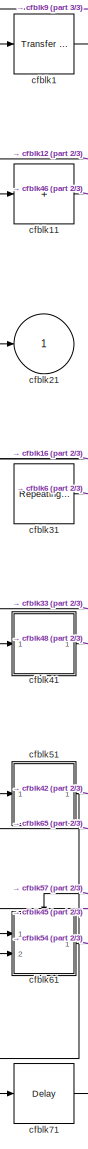
[diagram: root canvas - part 1/3, left side, full height]
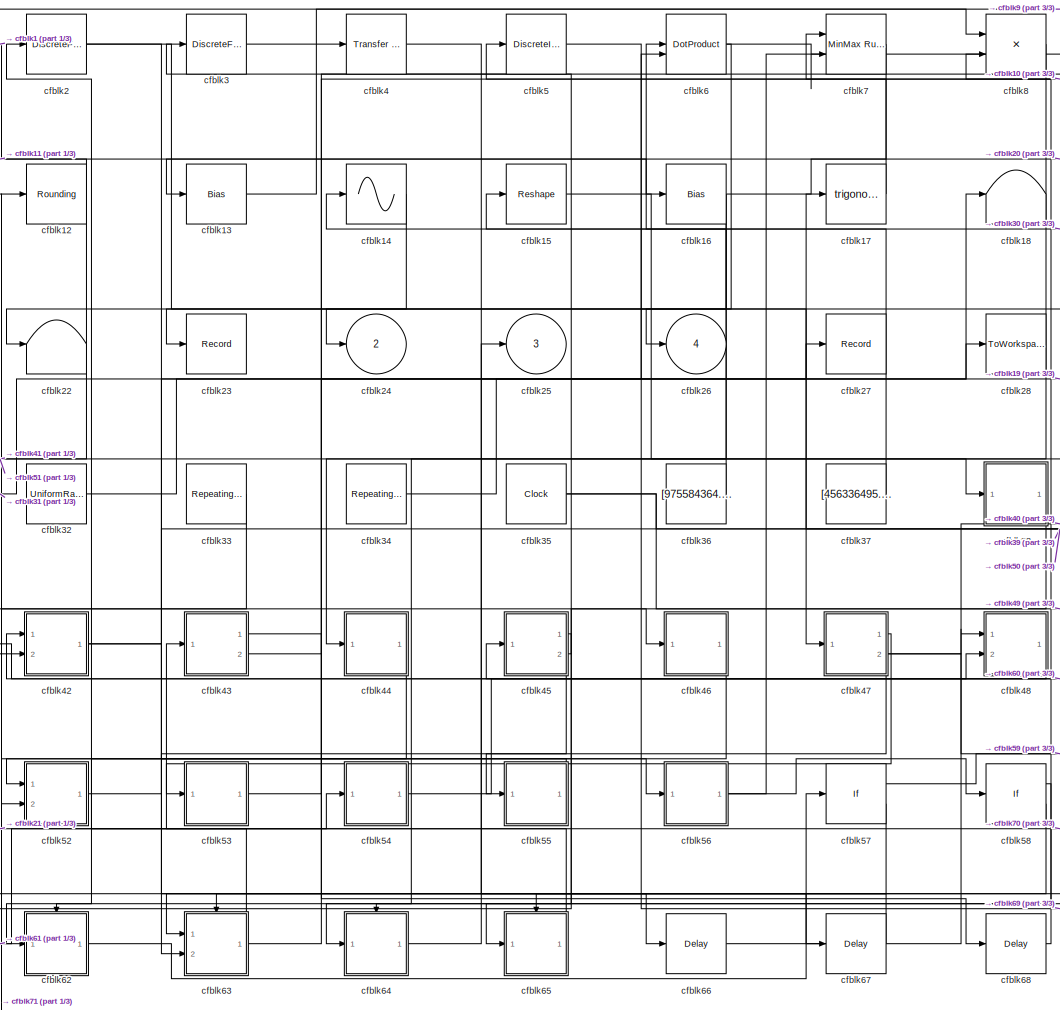
[diagram: root canvas - part 2/3, center side, full height]
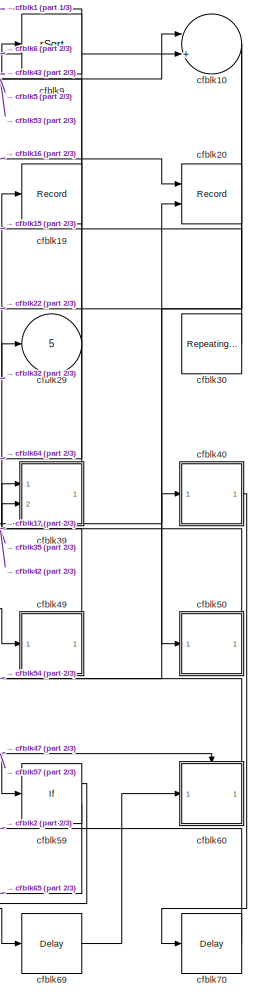
[diagram: root canvas - part 3/3, right side, full height]
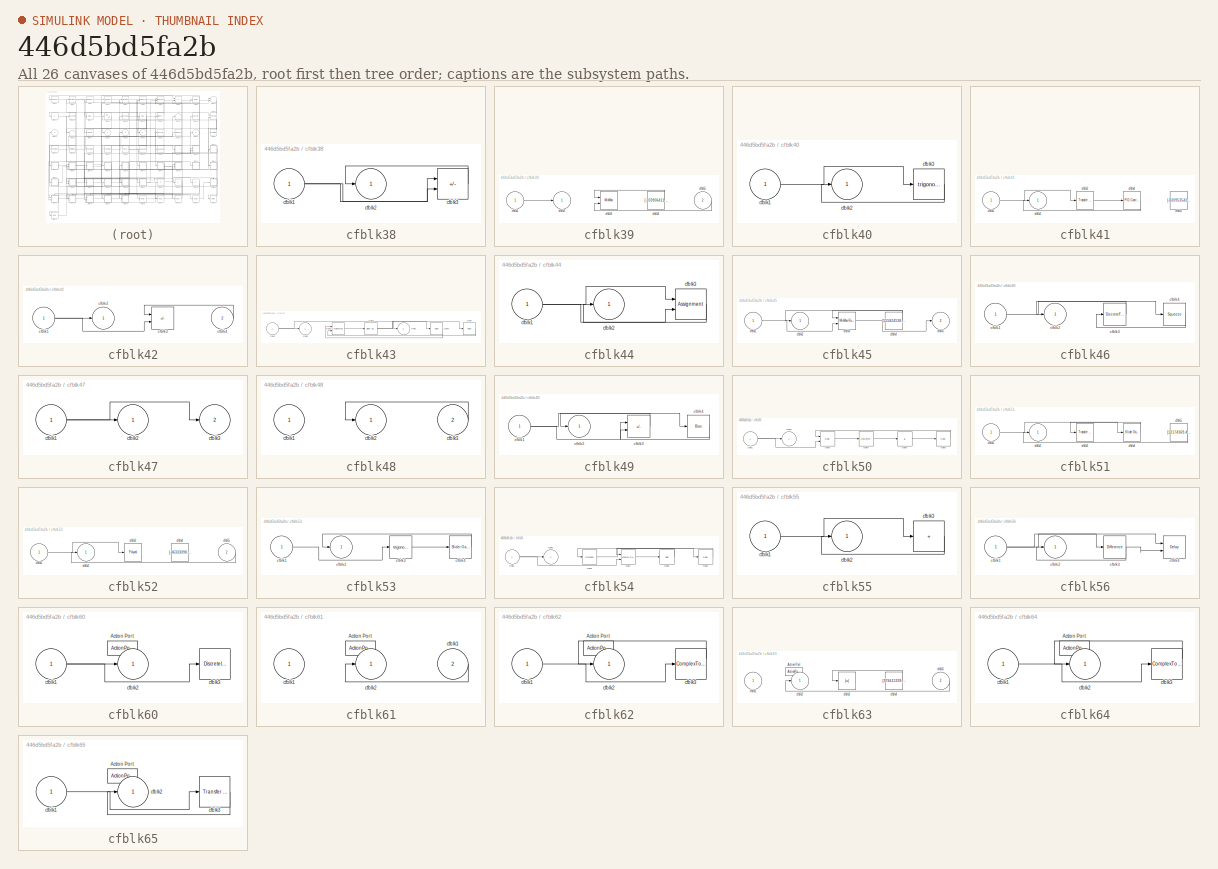
[diagram: thumbnail index - all 26 canvases of the model, root first then tree order]
MODEL slx_446d5bd5fa2b
KIND model
CONFIG AbsTol = auto
CONFIG EnableMultiTasking = off
CONFIG FixedStep = auto
CONFIG MaxStep = auto
CONFIG MinStep = auto
CONFIG RelTol = 1e-3
CONFIG SampleTimeConstraint = Unconstrained
CONFIG SolverName = VariableStepAuto
CONFIG StartTime = 0.0
CONFIG StopTime = 10.0
BLOCK [Reference] cfblk1  REF=simulink/Discrete/Transfer Fcn
Real Zero
  Ports = [1, 1]
  SourceBlock = simulink/Discrete/Transfer Fcn\nReal Zero
  SourceProductBaseCode = SL
  SourceType = Transfer Fcn Real Zero
BLOCK [Sum] cfblk10
  Inputs = |++
  Ports = [2, 1]
BLOCK [Sum] cfblk11
  IconShape = rectangular
  Inputs = +
  Ports = [1, 1]
BLOCK [Rounding] cfblk12
BLOCK [Bias] cfblk13
  Bias = [-683070541.144107]
  SaturateOnIntegerOverflow = off
BLOCK [Sin] cfblk14
  Ports = [1, 1]
  SampleTime = 0
  TimeSource = Use external signal
BLOCK [Reshape] cfblk15
  Ports = [1, 1]
BLOCK [Bias] cfblk16
  Bias = [-522802769.991097]
  SaturateOnIntegerOverflow = off
BLOCK [Trigonometry] cfblk17
  Ports = [1, 1]
BLOCK [Terminator] cfblk18
BLOCK [Record] cfblk19
  FileSettingsInternal = {"entries":[{"content":{"excelSettings":{"content":{},"type":"Streamout.ExcelSettings"}},"type":"Streamout.FileSettingStorage","uuid":"2ab1578b-86c7-4f25-b23b-f8d6f15a5c50"}],"packageUris":["http://schema.mathworks.com/mf0/streamout_blocks/R2020a"],"version":"1.0"}
  Ports = [1]
  SignalsInternal = {"entries":[{"content":{"signals":[{"content":{"blockPath":["sampleModel257/cfblk19"],"channel":[],"dimensions":[1],"domain":"sampleModel257/cfblk19","lineColor":"#fe330a","plots":[1],"port":1,"sid":[""],"signalID":10619,"signalName":"cfblk32"},"type":"RecordBlkView.Signal","uuid":"c116c59d-c383-4a62-b9dd-bef188b6a92c"}]},"type":"RecordBlkView.InputSignals","uuid":"59890f28-61aa-4252-838f-816ff403...<+98ch>
  VisualizationBindings = {"sparklinesplugin":{"info":[{"bindingParametersList":[],"subplotID":1}]}}
BLOCK [DiscreteFir] cfblk2
  InputPortMap = u0
  OutputPortMap = o0
  Ports = [1, 1]
  SampleTime = 1
BLOCK [Record] cfblk20
  CompatibilityTag = XY
  FileSettingsInternal = {"entries":[{"content":{"excelSettings":{"content":{},"type":"Streamout.ExcelSettings"}},"type":"Streamout.FileSettingStorage","uuid":"ddf2c5f0-8deb-4ac6-b6ac-07b526f580c7"}],"packageUris":["http://schema.mathworks.com/mf0/streamout_blocks/R2020a"],"version":"1.0"}
  Layout = [1 1]
  Ports = [2]
  SignalsInternal = {"entries":[{"content":{"signals":[{"content":{"blockPath":["sampleModel257/cfblk20"],"channel":[],"dimensions":[1],"domain":"sampleModel257/cfblk20","lineColor":"#a2142f","plots":[1],"port":1,"sid":[""],"signalID":10603,"signalName":"cfblk16"},"type":"RecordBlkView.Signal","uuid":"a0e00e2b-60e6-43d2-9d8d-836ea06b8f3f"},{"content":{"blockPath":["sampleModel257/cfblk20"],"channel":[],"dimensions":[...<+385ch>
  VisualizationBindings = {"xyplotplugin":{"info":[{"series":[{"bindingParametersList":[{"parameter":"X-Axis","signalID":10603,"signalName":"cfblk16"},{"parameter":"Y-Axis","signalID":10607,"signalName":"cfblk54"}],"seriesID":16544}],"subplotID":1}]}}
BLOCK [Outport] cfblk21
BLOCK [Terminator] cfblk22
BLOCK [Record] cfblk23
  FileSettingsInternal = {"entries":[{"content":{"excelSettings":{"content":{},"type":"Streamout.ExcelSettings"}},"type":"Streamout.FileSettingStorage","uuid":"70e21285-8622-4f4c-8864-935dd75f7605"}],"packageUris":["http://schema.mathworks.com/mf0/streamout_blocks/R2020a"],"version":"1.0"}
  Ports = [1]
  SignalsInternal = {"entries":[{"content":{"signals":[{"content":{"blockPath":["sampleModel257/cfblk23"],"channel":[],"dimensions":[1],"domain":"sampleModel257/cfblk23","lineColor":"#ff13a6","plots":[1],"port":1,"sid":[""],"signalID":10615,"signalName":"cfblk14"},"type":"RecordBlkView.Signal","uuid":"89a995ae-1b65-4a70-9c75-f562eec9963f"}]},"type":"RecordBlkView.InputSignals","uuid":"2aba3f60-c205-4dbe-934f-5a1f4002...<+98ch>
  VisualizationBindings = {"sparklinesplugin":{"info":[{"bindingParametersList":[],"subplotID":1}]}}
BLOCK [Outport] cfblk24
  Port = 2
BLOCK [Outport] cfblk25
  Port = 3
BLOCK [Outport] cfblk26
  Port = 4
BLOCK [Record] cfblk27
  FileSettingsInternal = {"entries":[{"content":{"excelSettings":{"content":{},"type":"Streamout.ExcelSettings"}},"type":"Streamout.FileSettingStorage","uuid":"9b9a9fdf-4e8d-4ae3-97b2-e0004514abab"}],"packageUris":["http://schema.mathworks.com/mf0/streamout_blocks/R2020a"],"version":"1.0"}
  Ports = [1]
  SignalsInternal = {"entries":[{"content":{"signals":[{"content":{"blockPath":["sampleModel257/cfblk27"],"channel":[],"dimensions":[1],"domain":"sampleModel257/cfblk27","lineColor":"#64d413","plots":[1],"port":1,"sid":[""],"signalID":10611,"signalName":"cfblk63"},"type":"RecordBlkView.Signal","uuid":"2aed3ace-228a-445a-9f27-d276254a442c"}]},"type":"RecordBlkView.InputSignals","uuid":"1cdac96b-9a88-4913-bf08-c3070154...<+98ch>
  VisualizationBindings = {"sparklinesplugin":{"info":[{"bindingParametersList":[],"subplotID":1}]}}
BLOCK [ToWorkspace] cfblk28
  FixptAsFi = on
  MaxDataPoints = inf
  Ports = [1]
  SampleTime = -1
  SaveFormat = Timeseries
  VariableName = nmvuykq
BLOCK [Outport] cfblk29
  Port = 5
BLOCK [DiscreteFir] cfblk3
  InputPortMap = u0
  OutputPortMap = o0
  Ports = [1, 1]
  SampleTime = 1
BLOCK [Reference] cfblk30  REF=simulink/Sources/Repeating
Sequence
  Ports = [0, 1]
  SourceBlock = simulink/Sources/Repeating\nSequence
  SourceProductBaseCode = SL
  SourceType = Repeating table
BLOCK [Reference] cfblk31  REF=simulink/Sources/Repeating
Sequence
Stair
  Ports = [0, 1]
  SourceBlock = simulink/Sources/Repeating\nSequence\nStair
  SourceProductBaseCode = SL
  SourceType = Repeating Sequence Stair
BLOCK [UniformRandomNumber] cfblk32
  Maximum = [5045896076.837665]
  Minimum = [-9375345232.117300]
  SampleTime = 0.1
  Seed = [26008851.000000]
BLOCK [Reference] cfblk33  REF=simulink/Sources/Repeating
Sequence
Stair
  Ports = [0, 1]
  SourceBlock = simulink/Sources/Repeating\nSequence\nStair
  SourceProductBaseCode = SL
  SourceType = Repeating Sequence Stair
BLOCK [Reference] cfblk34  REF=simulink/Sources/Repeating
Sequence
Interpolated
  Ports = [0, 1]
  SourceBlock = simulink/Sources/Repeating\nSequence\nInterpolated
  SourceProductBaseCode = SL
  SourceType = Repeating Sequence Interpolated
BLOCK [Clock] cfblk35
BLOCK [Constant] cfblk36
  SampleTime = 1
  Value = [975584364.645043]
BLOCK [Constant] cfblk37
  SampleTime = 1
  Value = [456336495.070314]
BLOCK [SubSystem] cfblk38
  Ports = [1, 1]
  RequestExecContextInheritance = off
BLOCK [Inport] cfblk38/cfblk1
BLOCK [Outport] cfblk38/cfblk2
BLOCK [Sum] cfblk38/cfblk3
  IconShape = rectangular
  Inputs = -+
  Ports = [2, 1]
BLOCK [SubSystem] cfblk39
  Ports = [2, 1]
  RequestExecContextInheritance = off
BLOCK [Inport] cfblk39/cfblk1
BLOCK [Outport] cfblk39/cfblk2
BLOCK [MinMax] cfblk39/cfblk3
  Function = max
  Inputs = 2
  Ports = [2, 1]
BLOCK [Constant] cfblk39/cfblk4
  SampleTime = 1
  Value = [-333906411.786085]
BLOCK [Inport] cfblk39/cfblk5
  Port = 2
BLOCK [Reference] cfblk4  REF=simulink/Discrete/Transfer Fcn
Real Zero
  Ports = [1, 1]
  SourceBlock = simulink/Discrete/Transfer Fcn\nReal Zero
  SourceProductBaseCode = SL
  SourceType = Transfer Fcn Real Zero
BLOCK [SubSystem] cfblk40
  Ports = [1, 1]
  RequestExecContextInheritance = off
BLOCK [Inport] cfblk40/cfblk1
BLOCK [Outport] cfblk40/cfblk2
BLOCK [Trigonometry] cfblk40/cfblk3
  Ports = [1, 1]
BLOCK [SubSystem] cfblk41
  Ports = [1, 1]
  RequestExecContextInheritance = off
BLOCK [Inport] cfblk41/cfblk1
BLOCK [Outport] cfblk41/cfblk2
BLOCK [Reference] cfblk41/cfblk3  REF=simulink/Discrete/Transfer Fcn
Lead or Lag
  Ports = [1, 1]
  SourceBlock = simulink/Discrete/Transfer Fcn\nLead or Lag
  SourceProductBaseCode = SL
  SourceType = Lead or Lag Compensator
BLOCK [Reference] cfblk41/cfblk4  REF=slpidlib/PID Controller
  Ports = [1, 1]
  SourceBlock = slpidlib/PID Controller
  SourceProductBaseCode = SL
  SourceType = PID 1dof
BLOCK [Constant] cfblk41/cfblk5
  SampleTime = 1
  Value = [-820953542.054547]
BLOCK [SubSystem] cfblk42
  Ports = [2, 1]
  RequestExecContextInheritance = off
BLOCK [Inport] cfblk42/cfblk1
BLOCK [Outport] cfblk42/cfblk2
BLOCK [Sum] cfblk42/cfblk3
  IconShape = rectangular
  Inputs = --
  Ports = [2, 1]
BLOCK [Inport] cfblk42/cfblk4
  Port = 2
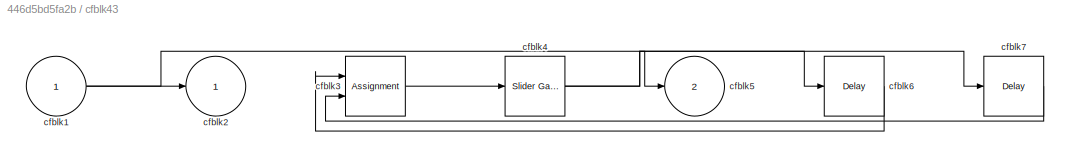
BLOCK [SubSystem] cfblk43
  Ports = [1, 2]
  RequestExecContextInheritance = off
BLOCK [Inport] cfblk43/cfblk1
BLOCK [Outport] cfblk43/cfblk2
BLOCK [Assignment] cfblk43/cfblk3
  DiagnosticForDimensions = Warning
  IndexOptions = Index vector (dialog)
  Indices = 1
  OutputSizes = 1
  Ports = [2, 1]
BLOCK [Reference] cfblk43/cfblk4  REF=simulink/Math
Operations/Slider
Gain
  Ports = [1, 1]
  SourceBlock = simulink/Math\nOperations/Slider\nGain
  SourceProductBaseCode = SL
  SourceType = Slider Gain
BLOCK [Outport] cfblk43/cfblk5
  Port = 2
BLOCK [Delay] cfblk43/cfblk6
  InputPortMap = u0
  Ports = [1, 1]
  SampleTime = 1
BLOCK [Delay] cfblk43/cfblk7
  InputPortMap = u0
  Ports = [1, 1]
  SampleTime = 1
BLOCK [SubSystem] cfblk44
  Ports = [1, 1]
  RequestExecContextInheritance = off
BLOCK [Inport] cfblk44/cfblk1
BLOCK [Outport] cfblk44/cfblk2
BLOCK [Assignment] cfblk44/cfblk3
  DiagnosticForDimensions = Warning
  IndexOptions = Index vector (dialog)
  Indices = 1
  OutputSizes = 1
  Ports = [2, 1]
BLOCK [SubSystem] cfblk45
  Ports = [1, 2]
  RequestExecContextInheritance = off
BLOCK [Inport] cfblk45/cfblk1
BLOCK [Outport] cfblk45/cfblk2
BLOCK [Reference] cfblk45/cfblk3  REF=simulink/Math
Operations/MinMax
Running
Resettable
  Ports = [2, 1]
  SourceBlock = simulink/Math\nOperations/MinMax\nRunning\nResettable
  SourceProductBaseCode = SL
  SourceType = MinMax Running Resettable
BLOCK [Constant] cfblk45/cfblk4
  SampleTime = 1
  Value = [555824538.830448]
BLOCK [Outport] cfblk45/cfblk5
  Port = 2
BLOCK [SubSystem] cfblk46
  Ports = [1, 1]
  RequestExecContextInheritance = off
BLOCK [Inport] cfblk46/cfblk1
BLOCK [Outport] cfblk46/cfblk2
BLOCK [DiscreteFir] cfblk46/cfblk3
  InputPortMap = u0
  OutputPortMap = o0
  Ports = [1, 1]
  SampleTime = 1
BLOCK [Squeeze] cfblk46/cfblk4
BLOCK [SubSystem] cfblk47
  Ports = [1, 2]
  RequestExecContextInheritance = off
BLOCK [Inport] cfblk47/cfblk1
BLOCK [Outport] cfblk47/cfblk2
BLOCK [Outport] cfblk47/cfblk3
  Port = 2
BLOCK [SubSystem] cfblk48
  Ports = [2, 1]
  RequestExecContextInheritance = off
BLOCK [Inport] cfblk48/cfblk1
BLOCK [Outport] cfblk48/cfblk2
BLOCK [Inport] cfblk48/cfblk3
  Port = 2
BLOCK [SubSystem] cfblk49
  Ports = [1, 1]
  RequestExecContextInheritance = off
BLOCK [Inport] cfblk49/cfblk1
BLOCK [Outport] cfblk49/cfblk2
BLOCK [Sum] cfblk49/cfblk3
  IconShape = rectangular
  Inputs = +-
  Ports = [2, 1]
BLOCK [Bias] cfblk49/cfblk4
  Bias = [31645302.167309]
  SaturateOnIntegerOverflow = off
BLOCK [DiscreteIntegrator] cfblk5
  ICPrevOutput = DiscIntNeverNeededParam
  ICPrevScaledInput = DiscIntNeverNeededParam
  InitialConditionSetting = Auto
  Ports = [1, 1]
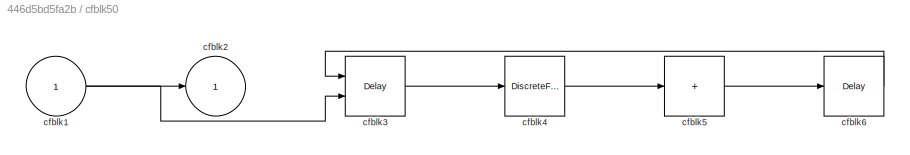
BLOCK [SubSystem] cfblk50
  Ports = [1, 1]
  RequestExecContextInheritance = off
BLOCK [Inport] cfblk50/cfblk1
BLOCK [Outport] cfblk50/cfblk2
BLOCK [Delay] cfblk50/cfblk3
  InputPortMap = u0,e6
  Ports = [2, 1]
  SampleTime = 1
  ShowEnablePort = on
BLOCK [DiscreteFilter] cfblk50/cfblk4
  InputPortMap = u0
  Ports = [1, 1]
  SampleTime = 1
BLOCK [Sum] cfblk50/cfblk5
  IconShape = rectangular
  Inputs = +
  Ports = [1, 1]
BLOCK [Delay] cfblk50/cfblk6
  InputPortMap = u0
  Ports = [1, 1]
  SampleTime = 1
BLOCK [SubSystem] cfblk51
  Ports = [1, 1]
  RequestExecContextInheritance = off
BLOCK [Inport] cfblk51/cfblk1
BLOCK [Outport] cfblk51/cfblk2
BLOCK [Reference] cfblk51/cfblk3  REF=simulink/Discrete/Transfer Fcn
Real Zero
  Ports = [1, 1]
  SourceBlock = simulink/Discrete/Transfer Fcn\nReal Zero
  SourceProductBaseCode = SL
  SourceType = Transfer Fcn Real Zero
BLOCK [Reference] cfblk51/cfblk4  REF=simulink/Math
Operations/Slider
Gain
  Ports = [1, 1]
  SourceBlock = simulink/Math\nOperations/Slider\nGain
  SourceProductBaseCode = SL
  SourceType = Slider Gain
BLOCK [Constant] cfblk51/cfblk5
  SampleTime = 1
  Value = [12174369.486101]
BLOCK [SubSystem] cfblk52
  Ports = [2, 1]
  RequestExecContextInheritance = off
BLOCK [Inport] cfblk52/cfblk1
BLOCK [Outport] cfblk52/cfblk2
BLOCK [Polyval] cfblk52/cfblk3
  Coefs = [ +2.081618890e-019, -1.441693666e-014, +4.719686976e-010, -8.536869453e-006, +1.621573104e-001, -8.087801117e+001 ]
BLOCK [Constant] cfblk52/cfblk4
  SampleTime = 1
  Value = [-46333098.552977]
BLOCK [Inport] cfblk52/cfblk5
  Port = 2
BLOCK [SubSystem] cfblk53
  Ports = [1, 1]
  RequestExecContextInheritance = off
BLOCK [Inport] cfblk53/cfblk1
BLOCK [Outport] cfblk53/cfblk2
BLOCK [Trigonometry] cfblk53/cfblk3
  Ports = [1, 1]
BLOCK [Reference] cfblk53/cfblk4  REF=simulink/Math
Operations/Slider
Gain
  Ports = [1, 1]
  SourceBlock = simulink/Math\nOperations/Slider\nGain
  SourceProductBaseCode = SL
  SourceType = Slider Gain
BLOCK [SubSystem] cfblk54
  Ports = [1, 1]
  RequestExecContextInheritance = off
BLOCK [Inport] cfblk54/cfblk1
BLOCK [Outport] cfblk54/cfblk2
BLOCK [Reshape] cfblk54/cfblk3
  Ports = [1, 1]
BLOCK [Reference] cfblk54/cfblk4  REF=simulink/Math
Operations/MinMax
Running
Resettable
  Ports = [2, 1]
  SourceBlock = simulink/Math\nOperations/MinMax\nRunning\nResettable
  SourceProductBaseCode = SL
  SourceType = MinMax Running Resettable
BLOCK [Bias] cfblk54/cfblk5
  Bias = [-975324311.703909]
  SaturateOnIntegerOverflow = off
BLOCK [Delay] cfblk54/cfblk6
  InputPortMap = u0
  Ports = [1, 1]
  SampleTime = 1
BLOCK [SubSystem] cfblk55
  Ports = [1, 1]
  RequestExecContextInheritance = off
BLOCK [Inport] cfblk55/cfblk1
BLOCK [Outport] cfblk55/cfblk2
BLOCK [Sum] cfblk55/cfblk3
  IconShape = rectangular
  Inputs = +
  Ports = [1, 1]
BLOCK [SubSystem] cfblk56
  Ports = [1, 1]
  RequestExecContextInheritance = off
BLOCK [Inport] cfblk56/cfblk1
BLOCK [Outport] cfblk56/cfblk2
BLOCK [Reference] cfblk56/cfblk3  REF=simulink/Discrete/Difference
  Ports = [1, 1]
  SourceBlock = simulink/Discrete/Difference
  SourceProductBaseCode = SL
  SourceType = Difference
BLOCK [Delay] cfblk56/cfblk4
  DelayLengthSource = Input port
  InputPortMap = u0,p1
  Ports = [2, 1]
  SampleTime = 1
BLOCK [If] cfblk57
  IfExpression = u1 >= 0
  Ports = [1, 2]
  SampleTime = 1
BLOCK [If] cfblk58
  IfExpression = u1 >= 0
  Ports = [1, 2]
  SampleTime = 1
BLOCK [If] cfblk59
  IfExpression = u1 >= 0
  Ports = [1, 2]
  SampleTime = 1
BLOCK [DotProduct] cfblk6
  OutDataTypeStr = Inherit: Inherit via internal rule
BLOCK [SubSystem] cfblk60
  Ports = [1, 1, 0, 0, 0, 0, 0, 1]
  RequestExecContextInheritance = off
  TreatAsAtomicUnit = on
BLOCK [ActionPort] cfblk60/Action Port
  ActionPortLabel = if(u1 >= 0)
BLOCK [Inport] cfblk60/cfblk1
BLOCK [Outport] cfblk60/cfblk2
BLOCK [DiscreteIntegrator] cfblk60/cfblk3
  ICPrevOutput = DiscIntNeverNeededParam
  ICPrevScaledInput = DiscIntNeverNeededParam
  InitialConditionSetting = Auto
  Ports = [1, 1]
  SampleTime = -1
BLOCK [SubSystem] cfblk61
  Ports = [2, 1, 0, 0, 0, 0, 0, 1]
  RequestExecContextInheritance = off
  TreatAsAtomicUnit = on
BLOCK [ActionPort] cfblk61/Action Port
  ActionPortLabel = else
BLOCK [Inport] cfblk61/cfblk1
BLOCK [Outport] cfblk61/cfblk2
BLOCK [Inport] cfblk61/cfblk3
  Port = 2
BLOCK [SubSystem] cfblk62
  Ports = [1, 1, 0, 0, 0, 0, 0, 1]
  RequestExecContextInheritance = off
  TreatAsAtomicUnit = on
BLOCK [ActionPort] cfblk62/Action Port
  ActionPortLabel = if(u1 >= 0)
BLOCK [Inport] cfblk62/cfblk1
BLOCK [Outport] cfblk62/cfblk2
BLOCK [ComplexToRealImag] cfblk62/cfblk3
  Ports = [1, 2]
BLOCK [SubSystem] cfblk63
  Ports = [2, 1, 0, 0, 0, 0, 0, 1]
  RequestExecContextInheritance = off
  TreatAsAtomicUnit = on
BLOCK [ActionPort] cfblk63/Action Port
  ActionPortLabel = else
BLOCK [Inport] cfblk63/cfblk1
BLOCK [Outport] cfblk63/cfblk2
BLOCK [Abs] cfblk63/cfblk3
  SaturateOnIntegerOverflow = off
BLOCK [Constant] cfblk63/cfblk4
  SampleTime = 1
  Value = [378415339.428640]
BLOCK [Inport] cfblk63/cfblk5
  Port = 2
BLOCK [SubSystem] cfblk64
  Ports = [1, 1, 0, 0, 0, 0, 0, 1]
  RequestExecContextInheritance = off
  TreatAsAtomicUnit = on
BLOCK [ActionPort] cfblk64/Action Port
  ActionPortLabel = if(u1 >= 0)
BLOCK [Inport] cfblk64/cfblk1
BLOCK [Outport] cfblk64/cfblk2
BLOCK [ComplexToRealImag] cfblk64/cfblk3
  Ports = [1, 2]
BLOCK [SubSystem] cfblk65
  Ports = [1, 1, 0, 0, 0, 0, 0, 1]
  RequestExecContextInheritance = off
  TreatAsAtomicUnit = on
BLOCK [ActionPort] cfblk65/Action Port
  ActionPortLabel = else
BLOCK [Inport] cfblk65/cfblk1
BLOCK [Outport] cfblk65/cfblk2
BLOCK [Reference] cfblk65/cfblk3  REF=simulink/Discrete/Transfer Fcn
First Order
  Ports = [1, 1]
  SourceBlock = simulink/Discrete/Transfer Fcn\nFirst Order
  SourceProductBaseCode = SL
  SourceType = First Order Transfer Fcn
BLOCK [Delay] cfblk66
  InputPortMap = u0
  Ports = [1, 1]
  SampleTime = 1
BLOCK [Delay] cfblk67
  InputPortMap = u0
  Ports = [1, 1]
  SampleTime = 1
BLOCK [Delay] cfblk68
  InputPortMap = u0
  Ports = [1, 1]
  SampleTime = 1
BLOCK [Delay] cfblk69
  InputPortMap = u0
  Ports = [1, 1]
  SampleTime = 1
BLOCK [Reference] cfblk7  REF=simulink/Math
Operations/MinMax
Running
Resettable
  Ports = [2, 1]
  SourceBlock = simulink/Math\nOperations/MinMax\nRunning\nResettable
  SourceProductBaseCode = SL
  SourceType = MinMax Running Resettable
BLOCK [Delay] cfblk70
  InputPortMap = u0
  Ports = [1, 1]
  SampleTime = 1
BLOCK [Delay] cfblk71
  InputPortMap = u0
  Ports = [1, 1]
  SampleTime = 1
BLOCK [Product] cfblk8
  Ports = [2, 1]
BLOCK [Sqrt] cfblk9
  AlgorithmType = Newton-Raphson
  Operator = rSqrt
NET cfblk10:1 -> cfblk22:1, cfblk50:1
LINE cfblk11:1 -> cfblk46:1
NET cfblk12:1 -> cfblk11:1, cfblk51:1
LINE cfblk13:1 -> cfblk8:1
LINE cfblk14:1 -> cfblk23:1
LINE cfblk15:1 -> cfblk38:1
NET cfblk16:1 -> cfblk20:1, cfblk24:1, cfblk41:1
LINE cfblk17:1 -> cfblk7:1
LINE cfblk1:1 -> cfblk16:1
NET cfblk2:1 -> cfblk47:1, cfblk56:1
LINE cfblk30:1 -> cfblk15:1
LINE cfblk31:1 -> cfblk6:2
LINE cfblk32:1 -> cfblk19:1
LINE cfblk33:1 -> cfblk61:2
LINE cfblk34:1 -> cfblk18:1
NET cfblk35:1 -> cfblk39:2, cfblk49:1
LINE cfblk36:1 -> cfblk6:1
LINE cfblk37:1 -> cfblk14:1
NET cfblk38/cfblk1:1 -> cfblk38/cfblk3:1, cfblk38/cfblk3:2
LINE cfblk38/cfblk3:1 -> cfblk38/cfblk2:1
LINE cfblk38:1 -> cfblk65:1
LINE cfblk39/cfblk1:1 -> cfblk39/cfblk2:1
LINE cfblk39/cfblk4:1 -> cfblk39/cfblk3:1
LINE cfblk39/cfblk5:1 -> cfblk39/cfblk3:2
LINE cfblk39:1 -> cfblk5:1
LINE cfblk3:1 -> cfblk4:1
LINE cfblk40/cfblk1:1 -> cfblk40/cfblk3:1
LINE cfblk40/cfblk3:1 -> cfblk40/cfblk2:1
LINE cfblk40:1 -> cfblk70:1
LINE cfblk41/cfblk1:1 -> cfblk41/cfblk3:1
LINE cfblk41/cfblk3:1 -> cfblk41/cfblk4:1
LINE cfblk41/cfblk4:1 -> cfblk41/cfblk2:1
LINE cfblk41:1 -> cfblk48:2
NET cfblk42/cfblk1:1 -> cfblk42/cfblk2:1, cfblk42/cfblk3:2
LINE cfblk42/cfblk4:1 -> cfblk42/cfblk3:1
NET cfblk42:1 -> cfblk39:1, cfblk67:1
NET cfblk43/cfblk1:1 -> cfblk43/cfblk2:1, cfblk43/cfblk5:1
LINE cfblk43/cfblk3:1 -> cfblk43/cfblk4:1
NET cfblk43/cfblk4:1 -> cfblk43/cfblk6:1, cfblk43/cfblk7:1
LINE cfblk43/cfblk6:1 -> cfblk43/cfblk3:1
LINE cfblk43/cfblk7:1 -> cfblk43/cfblk3:2
LINE cfblk43:1 -> cfblk68:1
LINE cfblk43:2 -> cfblk9:1
NET cfblk44/cfblk1:1 -> cfblk44/cfblk3:1, cfblk44/cfblk3:2
LINE cfblk44/cfblk3:1 -> cfblk44/cfblk2:1
LINE cfblk44:1 -> cfblk62:1
LINE cfblk45/cfblk1:1 -> cfblk45/cfblk3:2
LINE cfblk45/cfblk3:1 -> cfblk45/cfblk5:1
NET cfblk45/cfblk4:1 -> cfblk45/cfblk2:1, cfblk45/cfblk3:1
LINE cfblk45:1 -> cfblk61:1
NET cfblk45:2 -> cfblk3:1, cfblk55:1
LINE cfblk46/cfblk1:1 -> cfblk46/cfblk4:1
LINE cfblk46/cfblk3:1 -> cfblk46/cfblk2:1
LINE cfblk46/cfblk4:1 -> cfblk46/cfblk3:1
LINE cfblk46:1 -> cfblk52:2
NET cfblk47/cfblk1:1 -> cfblk47/cfblk2:1, cfblk47/cfblk3:1
LINE cfblk47:1 -> cfblk53:1
NET cfblk47:2 -> cfblk40:1, cfblk59:1, cfblk63:2
LINE cfblk48/cfblk3:1 -> cfblk48/cfblk2:1
LINE cfblk48:1 -> cfblk45:1
NET cfblk49/cfblk1:1 -> cfblk49/cfblk3:1, cfblk49/cfblk4:1
LINE cfblk49/cfblk3:1 -> cfblk49/cfblk2:1
LINE cfblk49/cfblk4:1 -> cfblk49/cfblk3:2
LINE cfblk49:1 -> cfblk29:1
LINE cfblk4:1 -> cfblk66:1
NET cfblk50/cfblk1:1 -> cfblk50/cfblk2:1, cfblk50/cfblk3:2
LINE cfblk50/cfblk3:1 -> cfblk50/cfblk4:1
LINE cfblk50/cfblk4:1 -> cfblk50/cfblk5:1
LINE cfblk50/cfblk5:1 -> cfblk50/cfblk6:1
LINE cfblk50/cfblk6:1 -> cfblk50/cfblk3:1
LINE cfblk50:1 -> cfblk17:1
LINE cfblk51/cfblk1:1 -> cfblk51/cfblk4:1
LINE cfblk51/cfblk4:1 -> cfblk51/cfblk3:1
LINE cfblk51/cfblk5:1 -> cfblk51/cfblk2:1
NET cfblk51:1 -> cfblk42:2, cfblk71:1
LINE cfblk52/cfblk1:1 -> cfblk52/cfblk3:1
LINE cfblk52/cfblk5:1 -> cfblk52/cfblk2:1
LINE cfblk52:1 -> cfblk28:1
LINE cfblk53/cfblk1:1 -> cfblk53/cfblk3:1
LINE cfblk53/cfblk3:1 -> cfblk53/cfblk4:1
LINE cfblk53/cfblk4:1 -> cfblk53/cfblk2:1
LINE cfblk53:1 -> cfblk10:1
NET cfblk54/cfblk1:1 -> cfblk54/cfblk2:1, cfblk54/cfblk4:2
LINE cfblk54/cfblk3:1 -> cfblk54/cfblk6:1
LINE cfblk54/cfblk4:1 -> cfblk54/cfblk5:1
LINE cfblk54/cfblk5:1 -> cfblk54/cfblk3:1
LINE cfblk54/cfblk6:1 -> cfblk54/cfblk4:1
LINE cfblk54:1 -> cfblk20:2
LINE cfblk55/cfblk1:1 -> cfblk55/cfblk3:1
LINE cfblk55/cfblk3:1 -> cfblk55/cfblk2:1
LINE cfblk55:1 -> cfblk52:1
NET cfblk56/cfblk1:1 -> cfblk56/cfblk3:1, cfblk56/cfblk4:1
NET cfblk56/cfblk3:1 -> cfblk56/cfblk2:1, cfblk56/cfblk4:2
NET cfblk56:1 -> cfblk58:1, cfblk7:2
LINE cfblk57:1 -> cfblk60:ifaction
LINE cfblk57:2 -> cfblk61:ifaction
LINE cfblk58:1 -> cfblk62:ifaction
LINE cfblk58:2 -> cfblk63:ifaction
LINE cfblk59:1 -> cfblk64:ifaction
LINE cfblk59:2 -> cfblk65:ifaction
LINE cfblk5:1 -> cfblk69:1
NET cfblk60/cfblk1:1 -> cfblk60/cfblk2:1, cfblk60/cfblk3:1
LINE cfblk60:1 -> cfblk42:1
LINE cfblk61/cfblk3:1 -> cfblk61/cfblk2:1
LINE cfblk61:1 -> cfblk54:1
LINE cfblk62/cfblk1:1 -> cfblk62/cfblk3:1
LINE cfblk62/cfblk3:1 -> cfblk62/cfblk2:1
LINE cfblk62:1 -> cfblk57:1
LINE cfblk63/cfblk4:1 -> cfblk63/cfblk3:1
LINE cfblk63/cfblk5:1 -> cfblk63/cfblk2:1
NET cfblk63:1 -> cfblk27:1, cfblk43:1
LINE cfblk64/cfblk1:1 -> cfblk64/cfblk3:1
LINE cfblk64/cfblk3:1 -> cfblk64/cfblk2:1
LINE cfblk64:1 -> cfblk25:1
LINE cfblk65/cfblk1:1 -> cfblk65/cfblk3:1
LINE cfblk65/cfblk3:1 -> cfblk65/cfblk2:1
LINE cfblk65:1 -> cfblk21:1
LINE cfblk66:1 -> cfblk48:1
LINE cfblk67:1 -> cfblk63:1
LINE cfblk68:1 -> cfblk8:2
LINE cfblk69:1 -> cfblk60:1
NET cfblk6:1 -> cfblk10:2, cfblk26:1
LINE cfblk70:1 -> cfblk2:1
LINE cfblk71:1 -> cfblk12:1
LINE cfblk7:1 -> cfblk13:1
LINE cfblk8:1 -> cfblk44:1
NET cfblk9:1 -> cfblk1:1, cfblk64:1
note: NET lines group one-source signal fan-out (src -> all destinations, sorted); 1:1 wires keep LINE
